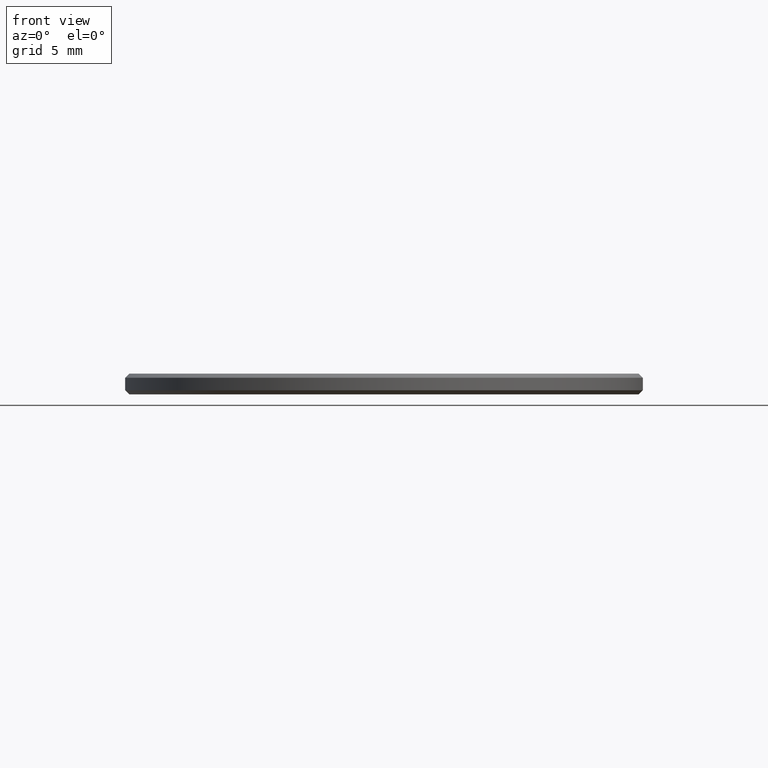
[diagram: clean part render]
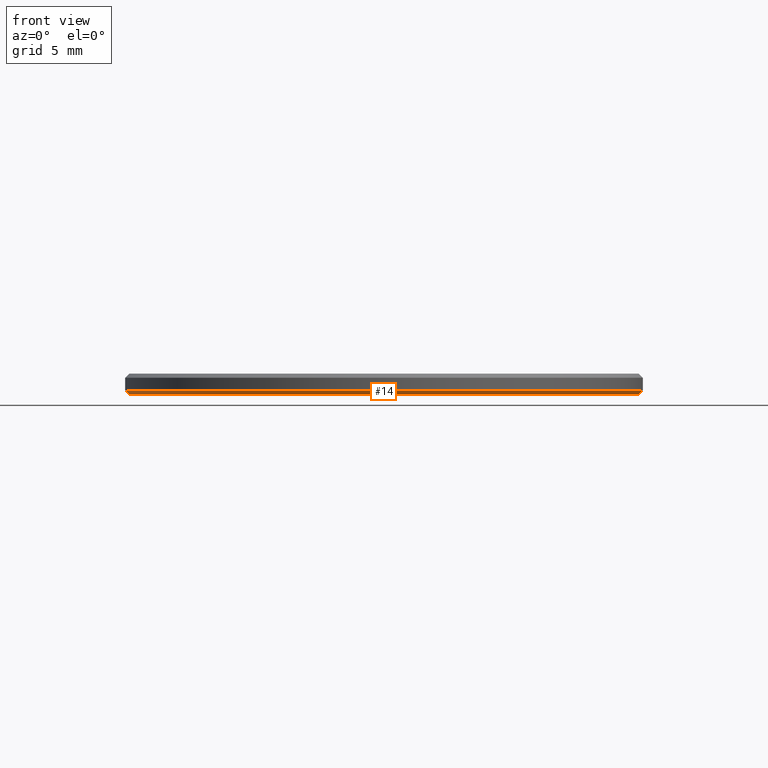
[diagram: same view with one face highlighted and labeled with its STEP entity id]
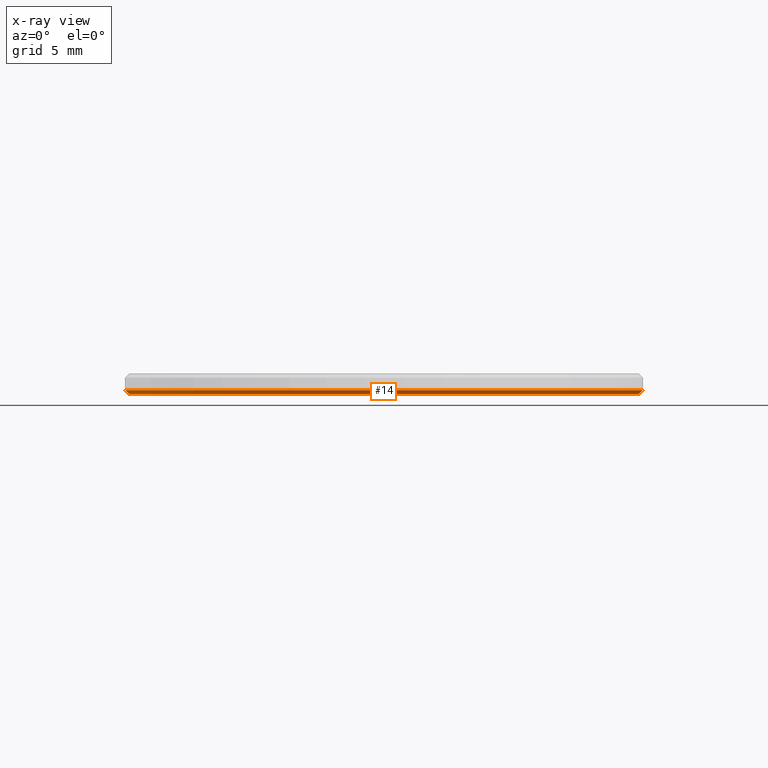
[diagram: x-ray of the same camera — body ghosted, the highlighted face saturated]
A machine part, front view. The second image highlights one B-rep face of the part: STEP entity #14.
The next image is the same camera in x-ray: the body ghosted, the highlighted face saturated — about 0% of this face is hidden behind the body in this view.
In plain terms, the highlighted conical surface has half-angle 45 deg.
Its self-contained STEP definition (entity closure, byte-faithful):
#1 = VERTEX_POINT ( 'NONE', #60 ) ;
#4 = VERTEX_POINT ( 'NONE', #64 ) ;
#5 = VERTEX_POINT ( 'NONE', #122 ) ;
#6 = DIRECTION ( 'NONE',  ( 1.000000000000000000, 0.000000000000000000, 0.000000000000000000 ) ) ;
#14 = ADVANCED_FACE ( 'NONE', ( #102 ), #224, .T. ) ;
#23 = EDGE_LOOP ( 'NONE', ( #226, #114, #61, #187 ) ) ;
#24 = EDGE_CURVE ( 'NONE', #5, #4, #131, .T. ) ;
#25 = DIRECTION ( 'NONE',  ( 1.000000000000000000, 0.000000000000000000, 0.000000000000000000 ) ) ;
#44 = VECTOR ( 'NONE', #68, 1000.000000000000114 ) ;
#47 = EDGE_CURVE ( 'NONE', #1, #5, #50, .T. ) ;
#50 = LINE ( 'NONE', #157, #44 ) ;
#60 = CARTESIAN_POINT ( 'NONE',  ( -12.30000000000000249, 1.518562030942718164E-15, 0.000000000000000000 ) ) ;
#61 = ORIENTED_EDGE ( 'NONE', *, *, #167, .T. ) ;
#64 = CARTESIAN_POINT ( 'NONE',  ( 12.50000000000000000, 1.530808498934191521E-15, 0.1999999999999987899 ) ) ;
#65 = CARTESIAN_POINT ( 'NONE',  ( 0.000000000000000000, 0.000000000000000000, 0.1999999999999987899 ) ) ;
#68 = DIRECTION ( 'NONE',  ( -0.7071067811865474617, 8.659560562354932858E-17, 0.7071067811865474617 ) ) ;
#85 = CIRCLE ( 'NONE', #179, 12.30000000000000249 ) ;
#102 = FACE_OUTER_BOUND ( 'NONE', #23, .T. ) ;
#114 = ORIENTED_EDGE ( 'NONE', *, *, #227, .F. ) ;
#122 = CARTESIAN_POINT ( 'NONE',  ( -12.50000000000000000, 0.000000000000000000, 0.1999999999999987899 ) ) ;
#131 = CIRCLE ( 'NONE', #231, 12.50000000000000000 ) ;
#140 = DIRECTION ( 'NONE',  ( -0.000000000000000000, -0.000000000000000000, 1.000000000000000000 ) ) ;
#146 = VECTOR ( 'NONE', #200, 1000.000000000000114 ) ;
#147 = CARTESIAN_POINT ( 'NONE',  ( 0.000000000000000000, 0.000000000000000000, 0.000000000000000000 ) ) ;
#148 = AXIS2_PLACEMENT_3D ( 'NONE', #65, #140, #25 ) ;
#153 = DIRECTION ( 'NONE',  ( -0.000000000000000000, -0.000000000000000000, 1.000000000000000000 ) ) ;
#157 = CARTESIAN_POINT ( 'NONE',  ( -12.50000000000000000, 1.530808498934191521E-15, 0.1999999999999987899 ) ) ;
#164 = CARTESIAN_POINT ( 'NONE',  ( 12.30000000000000249, 0.000000000000000000, 0.000000000000000000 ) ) ;
#167 = EDGE_CURVE ( 'NONE', #207, #4, #236, .T. ) ;
#170 = CARTESIAN_POINT ( 'NONE',  ( 0.000000000000000000, 0.000000000000000000, 0.1999999999999987899 ) ) ;
#179 = AXIS2_PLACEMENT_3D ( 'NONE', #147, #184, #183 ) ;
#183 = DIRECTION ( 'NONE',  ( 1.000000000000000000, 0.000000000000000000, 0.000000000000000000 ) ) ;
#184 = DIRECTION ( 'NONE',  ( -0.000000000000000000, -0.000000000000000000, -1.000000000000000000 ) ) ;
#187 = ORIENTED_EDGE ( 'NONE', *, *, #24, .F. ) ;
#197 = CARTESIAN_POINT ( 'NONE',  ( 12.50000000000000000, 0.000000000000000000, 0.1999999999999987899 ) ) ;
#200 = DIRECTION ( 'NONE',  ( 0.7071067811865474617, 0.000000000000000000, 0.7071067811865474617 ) ) ;
#207 = VERTEX_POINT ( 'NONE', #164 ) ;
#224 = CONICAL_SURFACE ( 'NONE', #148, 12.50000000000000000, 0.7853981633974482790 ) ;
#226 = ORIENTED_EDGE ( 'NONE', *, *, #47, .F. ) ;
#227 = EDGE_CURVE ( 'NONE', #207, #1, #85, .T. ) ;
#231 = AXIS2_PLACEMENT_3D ( 'NONE', #170, #153, #6 ) ;
#236 = LINE ( 'NONE', #197, #146 ) ;